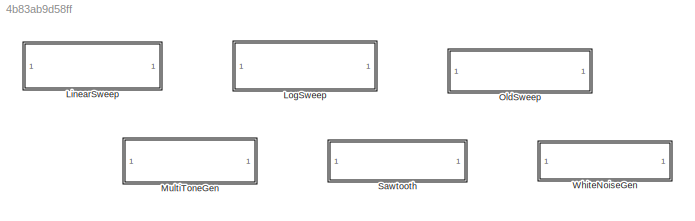
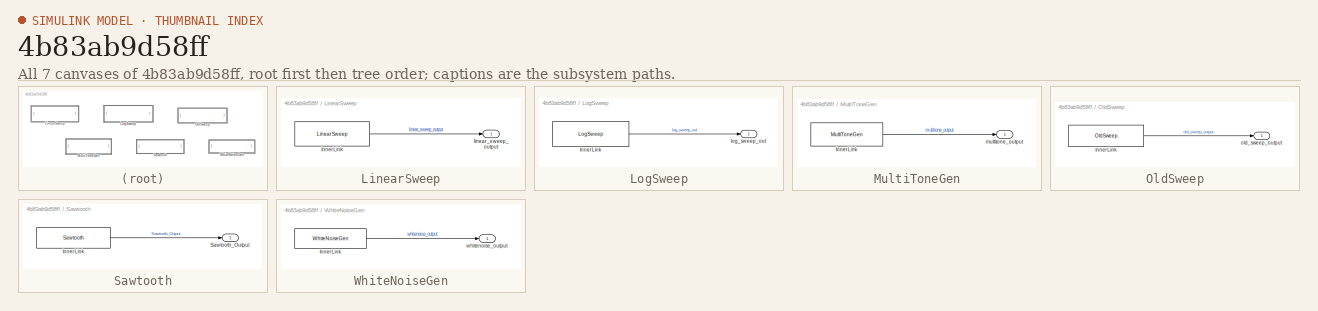
[diagram: thumbnail index - all 7 canvases of the model, root first then tree order]
MODEL slx_4b83ab9d58ff
KIND library
CONFIG AbsTol = auto
CONFIG EnableMultiTasking = off
CONFIG FixedStep = auto
CONFIG MaxStep = auto
CONFIG MinStep = auto
CONFIG RelTol = 1e-3
CONFIG SampleTimeConstraint = Unconstrained
CONFIG SolverName = VariableStepAuto
CONFIG StartTime = 0.0
CONFIG StopTime = 10.0
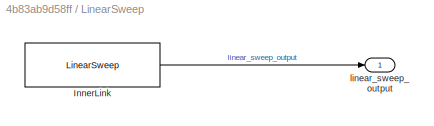
BLOCK [SubSystem] LinearSweep
BLOCK [Reference] LinearSweep/InnerLink  REF=SignalGeneratorLibBtc/LinearSweep
  SourceBlock = SignalGeneratorLibBtc/LinearSweep
  SourceProductName = Bose Blocklib
  SourceType = Blocklib LinearSweep
BLOCK [Outport] LinearSweep/linear_sweep_output
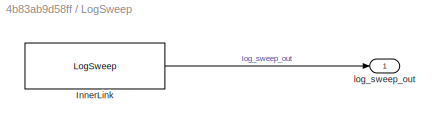
BLOCK [SubSystem] LogSweep
BLOCK [Reference] LogSweep/InnerLink  REF=SignalGeneratorLibBtc/LogSweep
  SourceBlock = SignalGeneratorLibBtc/LogSweep
  SourceProductName = Bose Blocklib
  SourceType = Blocklib LogSweep
BLOCK [Outport] LogSweep/log_sweep_out
BLOCK [SubSystem] MultiToneGen
BLOCK [Reference] MultiToneGen/InnerLink  REF=SignalGeneratorLibBtc/MultiToneGen
  SourceBlock = SignalGeneratorLibBtc/MultiToneGen
  SourceProductName = Bose Blocklib
  SourceType = Blocklib MultiToneGen
BLOCK [Outport] MultiToneGen/multitone_output
BLOCK [SubSystem] OldSweep
BLOCK [Reference] OldSweep/InnerLink  REF=SignalGeneratorLibBtc/OldSweep
  SourceBlock = SignalGeneratorLibBtc/OldSweep
  SourceProductName = Bose Blocklib
  SourceType = Blocklib OldSweep
BLOCK [Outport] OldSweep/old_sweep_output
BLOCK [SubSystem] Sawtooth
BLOCK [Reference] Sawtooth/InnerLink  REF=SignalGeneratorLibBtc/Sawtooth
  SourceBlock = SignalGeneratorLibBtc/Sawtooth
  SourceProductName = Bose Blocklib
  SourceType = Blocklib Sawtooth
BLOCK [Outport] Sawtooth/Sawtooth_Output
BLOCK [SubSystem] WhiteNoiseGen
BLOCK [Reference] WhiteNoiseGen/InnerLink  REF=SignalGeneratorLibBtc/WhiteNoiseGen
  SourceBlock = SignalGeneratorLibBtc/WhiteNoiseGen
  SourceProductName = Bose Blocklib
  SourceType = Blocklib WhiteNoiseGen
BLOCK [Outport] WhiteNoiseGen/whitenoise_output
LINE LinearSweep/InnerLink:1 -> LinearSweep/linear_sweep_output:1
LINE LogSweep/InnerLink:1 -> LogSweep/log_sweep_out:1
LINE MultiToneGen/InnerLink:1 -> MultiToneGen/multitone_output:1
LINE OldSweep/InnerLink:1 -> OldSweep/old_sweep_output:1
LINE Sawtooth/InnerLink:1 -> Sawtooth/Sawtooth_Output:1
LINE WhiteNoiseGen/InnerLink:1 -> WhiteNoiseGen/whitenoise_output:1
